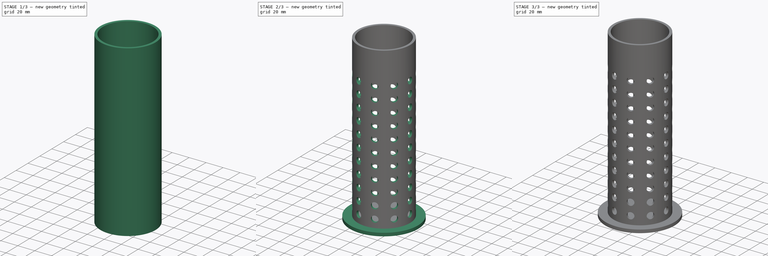
[diagram: build sequence overview — one tinted view per stage of 3, left to right]
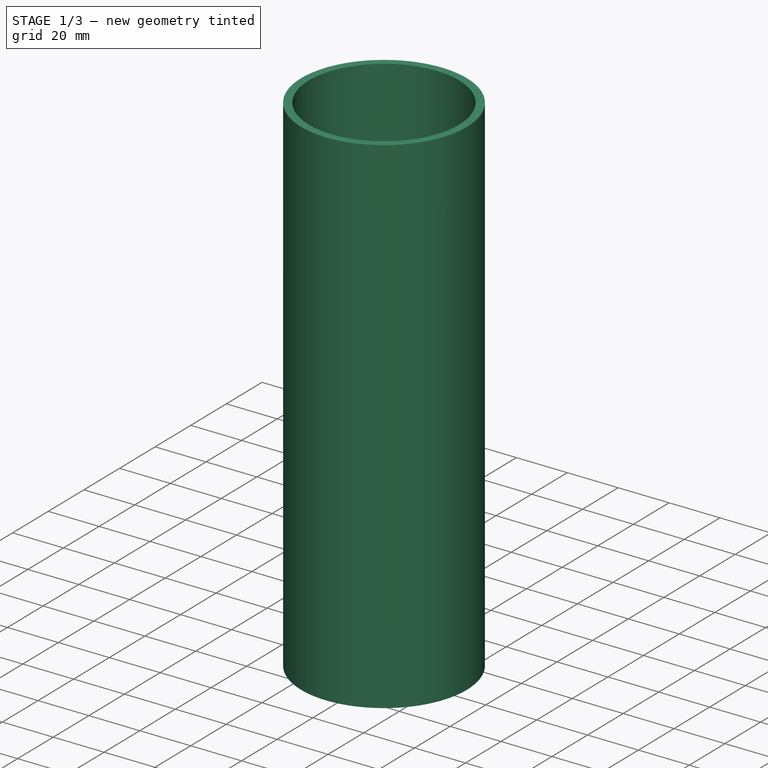
[diagram: stage 1 of 3 — iso view after this stage's code; geometry added in this stage tinted green]
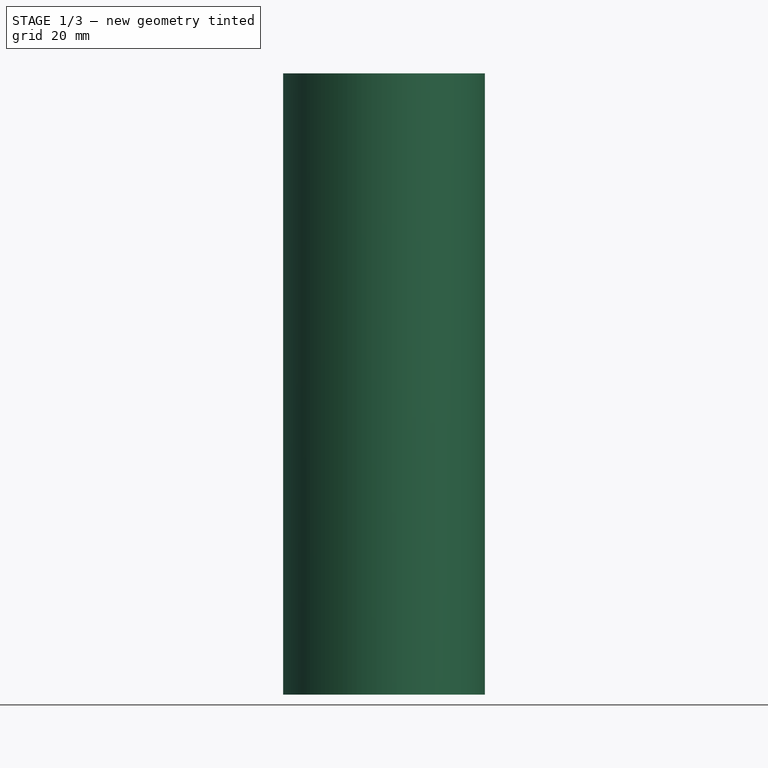
[diagram: stage 1 of 3 — front view after this stage's code; geometry added in this stage tinted green]
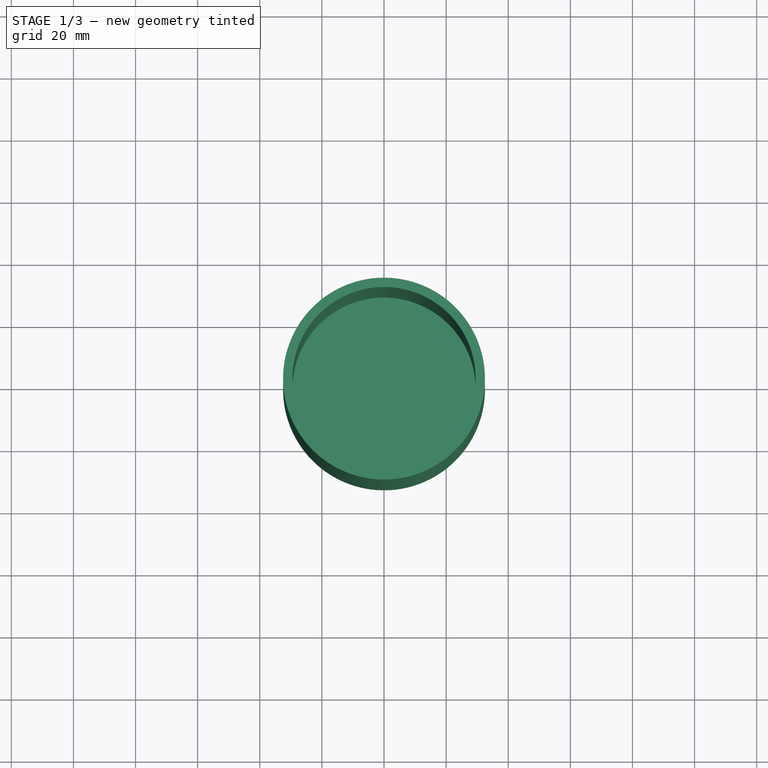
[diagram: stage 1 of 3 — top view after this stage's code; geometry added in this stage tinted green]
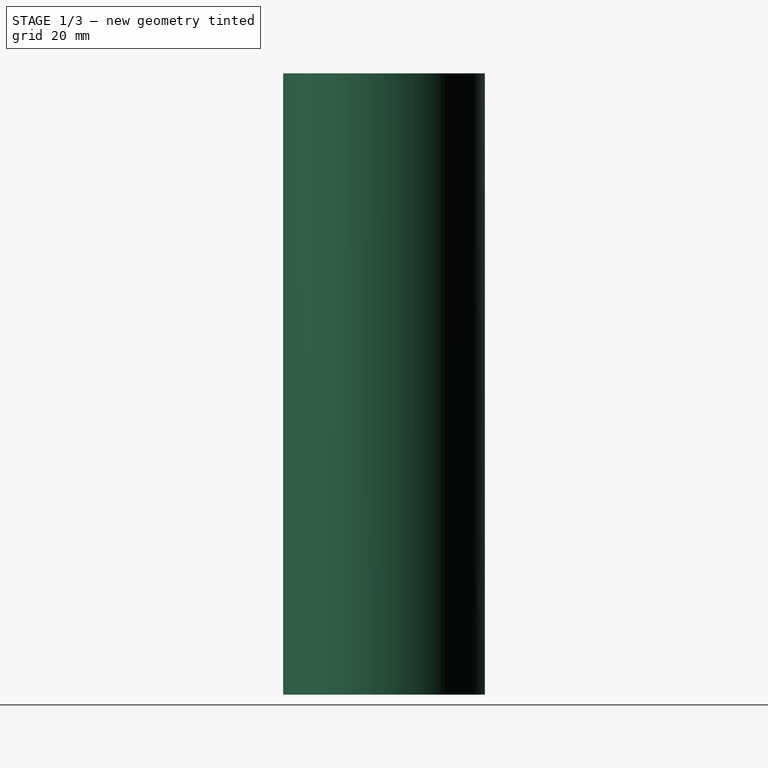
[diagram: stage 1 of 3 — right view after this stage's code; geometry added in this stage tinted green]
FCSTD DOCUMENT  (FreeCAD 1.0R39285 (Git))
Label: Lamp
License: All rights reserved
LicenseURL: https://en.wikipedia.org/wiki/All_rights_reserved
objects: Sketcher::SketchObject×5, PartDesign::Pad×3, PartDesign::Pocket×2, PartDesign::Thickness×1, PartDesign::PolarPattern×1, PartDesign::Body×1
note: 31 computed .brp shape members not serialized (recipe doc carries the construction recipe); baked Part::Feature solids carry a one-line shape summary decoded from their .brp

FEATURE [Sketcher::SketchObject] Sketch
  ArcFitTolerance = 1e-06
  AttachmentSupport = -> [XY_Plane]
  FullyConstrained = true
  MakeInternals = false
  MapMode = 5
  sketch-geometry (1):
    g0: Circle CenterX=0 CenterY=0 CenterZ=0 NormalX=0 NormalY=0 NormalZ=1 AngleXU=0 Radius=32.5
  constraints (2):
    c: Diameter(g0) = 65
    c: Coincident(g0,g-1)
FEATURE [PartDesign::Pad] Pad
  Direction = (0,0,1)
  Length = 200
  Length2 = 10
  Profile = -> Sketch
  ReferenceAxis = -> Sketch [N_Axis]
  Refine = true
  Suppressed = false
  Type = 0
FEATURE [PartDesign::Thickness] Thickness
  Base = -> Pad [Face3]
  BaseFeature = -> Pad
  Intersection = false
  Join = 0
  Mode = 0
  Refine = true
  Reversed = true
  SupportTransform = false
  Suppressed = false
  Value = 3
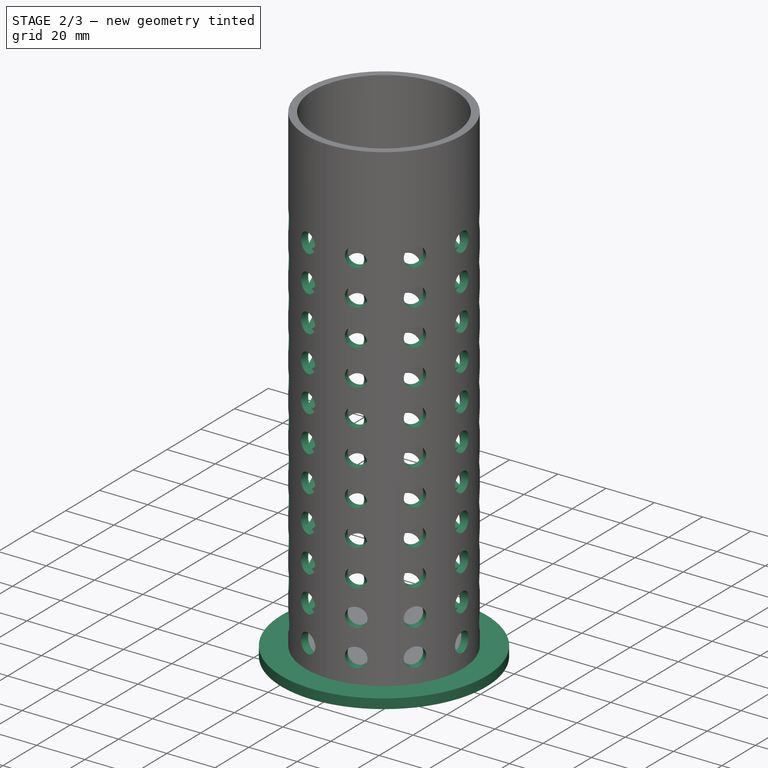
[diagram: stage 2 of 3 — iso view after this stage's code; geometry added in this stage tinted green]
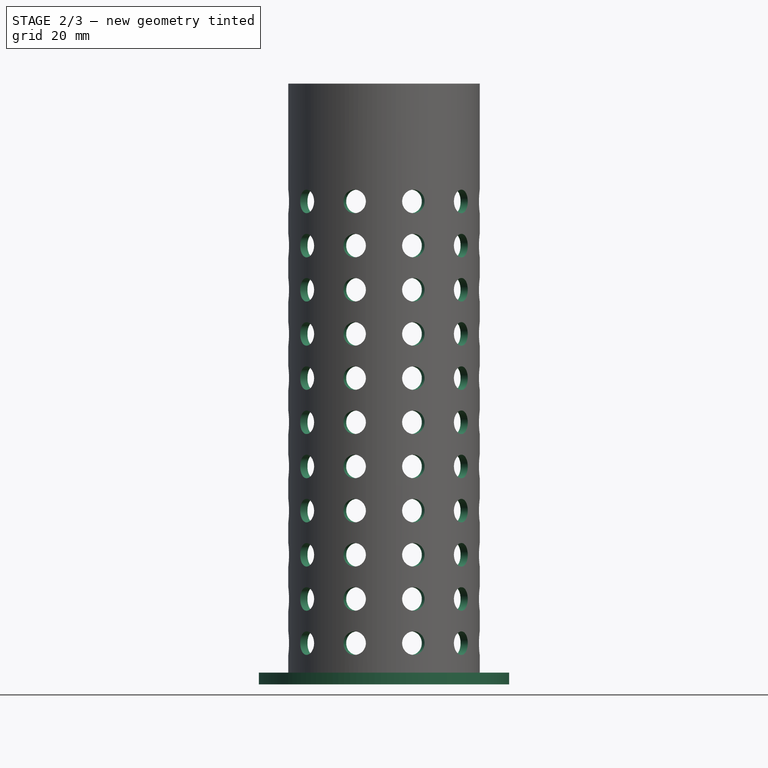
[diagram: stage 2 of 3 — front view after this stage's code; geometry added in this stage tinted green]
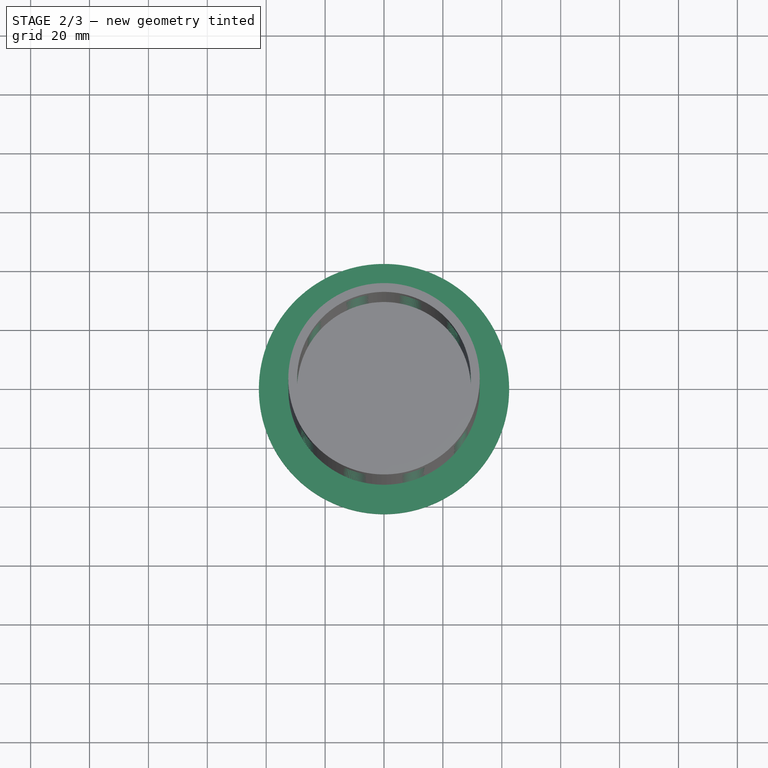
[diagram: stage 2 of 3 — top view after this stage's code; geometry added in this stage tinted green]
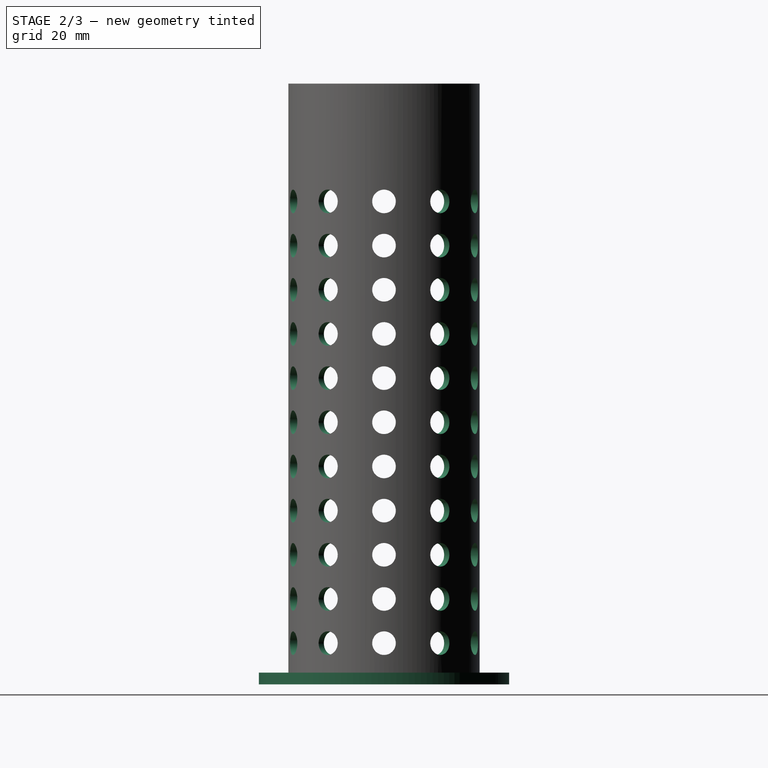
[diagram: stage 2 of 3 — right view after this stage's code; geometry added in this stage tinted green]
FEATURE [Sketcher::SketchObject] Sketch001
  ArcFitTolerance = 1e-06
  AttachmentSupport = -> [YZ_Plane]
  FullyConstrained = true
  MakeInternals = false
  MapMode = 5
  Placement = pos=(0,0,0) rot=(0.57735,0.57735,0.57735;2.0944rad)
  sketch-geometry (23):
    g0: Circle CenterX=0 CenterY=10 CenterZ=0 NormalX=0 NormalY=0 NormalZ=1 AngleXU=0 Radius=4
    g1: Circle CenterX=0 CenterY=25 CenterZ=0 NormalX=0 NormalY=0 NormalZ=1 AngleXU=0 Radius=4
    g2: Circle CenterX=0 CenterY=40 CenterZ=0 NormalX=0 NormalY=0 NormalZ=1 AngleXU=0 Radius=4
    g3: Circle CenterX=0 CenterY=55 CenterZ=0 NormalX=0 NormalY=0 NormalZ=1 AngleXU=0 Radius=4
    g4: Circle CenterX=0 CenterY=70 CenterZ=0 NormalX=0 NormalY=0 NormalZ=1 AngleXU=0 Radius=4
    g5: Circle CenterX=0 CenterY=85 CenterZ=0 NormalX=0 NormalY=0 NormalZ=1 AngleXU=0 Radius=4
    g6: Circle CenterX=0 CenterY=100 CenterZ=0 NormalX=0 NormalY=0 NormalZ=1 AngleXU=0 Radius=4
    g7: Circle CenterX=0 CenterY=115 CenterZ=0 NormalX=0 NormalY=0 NormalZ=1 AngleXU=0 Radius=4
    g8: Circle CenterX=0 CenterY=130 CenterZ=0 NormalX=0 NormalY=0 NormalZ=1 AngleXU=0 Radius=4
    g9: Circle CenterX=0 CenterY=145 CenterZ=0 NormalX=0 NormalY=0 NormalZ=1 AngleXU=0 Radius=4
    g10: Circle CenterX=0 CenterY=160 CenterZ=0 NormalX=0 NormalY=0 NormalZ=1 AngleXU=0 Radius=4
    g11: LineSegment [constr] StartX=0 StartY=10 StartZ=0 EndX=0 EndY=25 EndZ=0
    g12: LineSegment [constr] StartX=0 StartY=25 StartZ=0 EndX=0 EndY=40 EndZ=0
    g13: LineSegment [constr] StartX=0 StartY=40 StartZ=0 EndX=0 EndY=55 EndZ=0
    g14: LineSegment [constr] StartX=0 StartY=55 StartZ=0 EndX=0 EndY=70 EndZ=0
    g15: LineSegment [constr] StartX=0 StartY=70 StartZ=0 EndX=0 EndY=85 EndZ=0
    g16: LineSegment [constr] StartX=0 StartY=85 StartZ=0 EndX=0 EndY=100 EndZ=0
    g17: LineSegment [constr] StartX=0 StartY=100 StartZ=0 EndX=0 EndY=115 EndZ=0
    g18: LineSegment [constr] StartX=0 StartY=115 StartZ=0 EndX=0 EndY=130 EndZ=0
    g19: LineSegment [constr] StartX=0 StartY=130 StartZ=0 EndX=0 EndY=145 EndZ=0
    g20: LineSegment [constr] StartX=0 StartY=145 StartZ=0 EndX=0 EndY=160 EndZ=0
    g21: LineSegment [constr] StartX=0 StartY=10 StartZ=0 EndX=0 EndY=25 EndZ=0
    g22: LineSegment [constr] StartX=0 StartY=10 StartZ=0 EndX=0 EndY=25 EndZ=0
  constraints (58):
    c: Diameter(g0) = 8
    c: PointOnObject(g0,g-2)
    c: Distance(g0,g-1) = 10
    c: Coincident(g11,g0)
    c: Coincident(g11,g1)
    c: Vertical(g11)
    c: Coincident(g12,g1)
    c: Coincident(g12,g2)
    c: Vertical(g12)
    c: Coincident(g13,g2)
    c: Coincident(g13,g3)
    c: Vertical(g13)
    c: Coincident(g14,g3)
    c: Coincident(g14,g4)
    c: Vertical(g14)
    c: Coincident(g15,g4)
    c: Coincident(g15,g5)
    c: Vertical(g15)
    c: Coincident(g16,g5)
    c: Coincident(g16,g6)
    c: Vertical(g16)
    c: Coincident(g17,g6)
    c: Coincident(g17,g7)
    c: Vertical(g17)
    c: Coincident(g18,g7)
    c: Coincident(g18,g8)
    c: Vertical(g18)
    c: Coincident(g19,g8)
    c: Coincident(g19,g9)
    c: Vertical(g19)
    c: Coincident(g20,g9)
    c: Coincident(g20,g10)
    c: Vertical(g20)
    c: Coincident(g21,g0)
    c: Coincident(g21,g1)
    c: Coincident(g22,g0)
    c: Coincident(g22,g1)
    c: Equal(g11,g12)
    c: Equal(g12,g13)
    c: Equal(g13,g14)
    c: Equal(g14,g15)
    c: Equal(g15,g16)
    c: Equal(g16,g17)
    c: Equal(g17,g18)
    c: Equal(g18,g19)
    c: Equal(g19,g20)
    c: PointOnObject(g0,g-2)
    c: Equal(g0,g1)
    c: Equal(g1,g2)
    c: Equal(g2,g3)
    c: Equal(g3,g4)
    c: Equal(g4,g5)
    c: Equal(g5,g6)
    c: Equal(g6,g7)
    c: Equal(g7,g8)
    c: Equal(g8,g9)
    c: Equal(g9,g10)
    c: DistanceY(g11,g11) = 15
FEATURE [PartDesign::Pocket] Pocket
  BaseFeature = -> Thickness
  Direction = (-1,0,0)
  Length = 5
  Length2 = 5
  Profile = -> Sketch001
  ReferenceAxis = -> Sketch001 [N_Axis]
  Refine = true
  Suppressed = false
  Type = 1
FEATURE [PartDesign::PolarPattern] PolarPattern
  Angle = 360
  Axis = -> Z_Axis
  BaseFeature = -> Pocket
  Mode = 0
  Occurrences = 10
  Offset = 120
  Originals = -> [Pocket]
  Refine = true
  Suppressed = false
  TransformMode = 0
FEATURE [Sketcher::SketchObject] Sketch002
  ArcFitTolerance = 1e-06
  AttachmentSupport = -> [XY_Plane]
  FullyConstrained = true
  MakeInternals = false
  MapMode = 5
  sketch-geometry (1):
    g0: Circle CenterX=0 CenterY=0 CenterZ=0 NormalX=0 NormalY=0 NormalZ=1 AngleXU=0 Radius=42.5
  constraints (2):
    c: Diameter(g0) = 85
    c: Coincident(g0,g-1)
FEATURE [PartDesign::Pad] Pad001
  BaseFeature = -> PolarPattern
  Direction = (0,0,1)
  Length = 4
  Length2 = 10
  Profile = -> Sketch002
  ReferenceAxis = -> Sketch002 [N_Axis]
  Refine = true
  Reversed = true
  Suppressed = false
  Type = 0
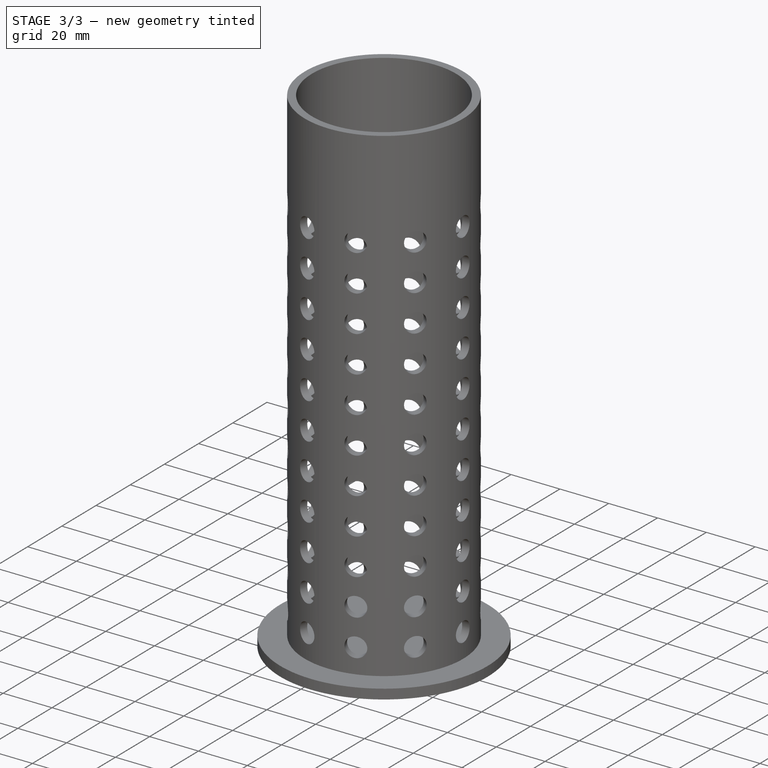
[diagram: stage 3 of 3 — iso view after this stage's code; geometry added in this stage tinted green]
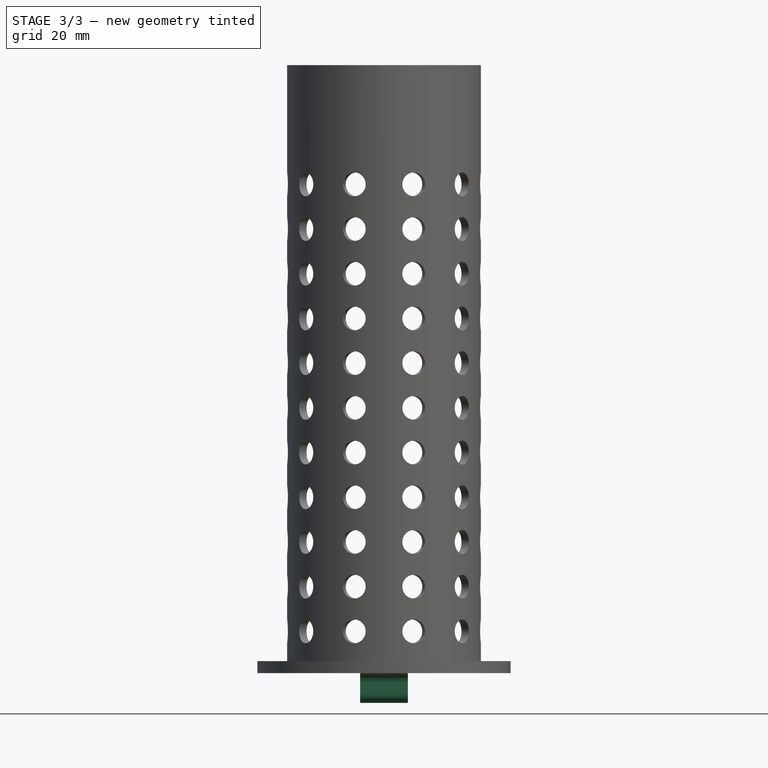
[diagram: stage 3 of 3 — front view after this stage's code; geometry added in this stage tinted green]
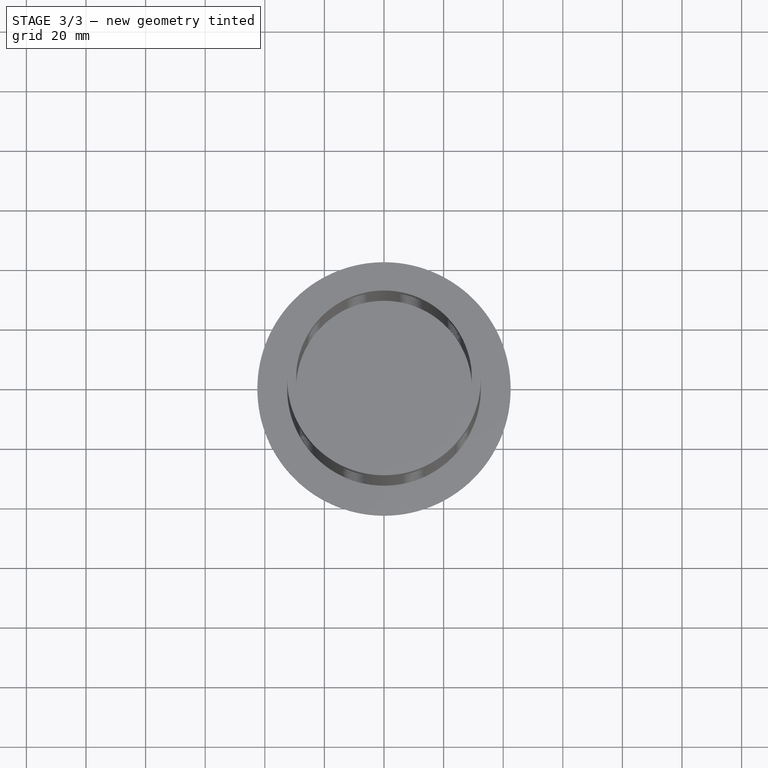
[diagram: stage 3 of 3 — top view after this stage's code; geometry added in this stage tinted green]
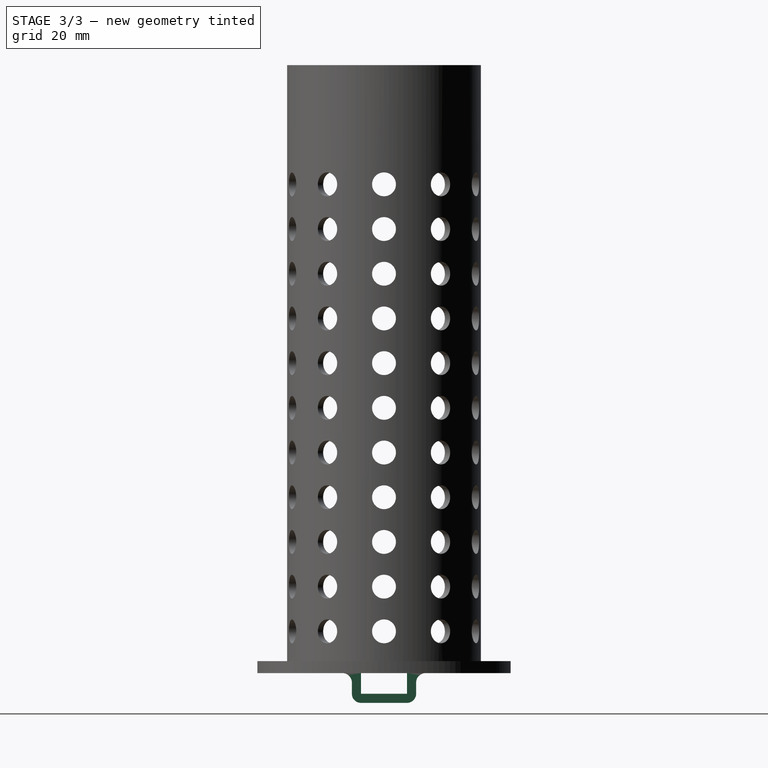
[diagram: stage 3 of 3 — right view after this stage's code; geometry added in this stage tinted green]
FEATURE [Sketcher::SketchObject] Sketch003
  ArcFitTolerance = 1e-06
  AttachmentSupport = -> [Pad001]
  FullyConstrained = true
  MakeInternals = false
  MapMode = 5
  Placement = pos=(0,0,-4) rot=(1,0,0;3.14159rad)
  sketch-geometry (4):
    g0: LineSegment StartX=-8 StartY=14 StartZ=0 EndX=8 EndY=14 EndZ=0
    g1: LineSegment StartX=8 StartY=14 StartZ=0 EndX=8 EndY=-14 EndZ=0
    g2: LineSegment StartX=-8 StartY=14 StartZ=0 EndX=-8 EndY=-14 EndZ=0
    g3: LineSegment StartX=-8 StartY=-14 StartZ=0 EndX=8 EndY=-14 EndZ=0
  constraints (10):
    c: Distance(g0) = 16
    c: Distance(g1) = 28
    c: Coincident(g1,g0)
    c: Coincident(g2,g0)
    c: Vertical(g2)
    c: Coincident(g3,g2)
    c: Coincident(g3,g1)
    c: Horizontal(g3)
    c: Symmetric(g0,g0,g-2)
    c: Symmetric(g0,g1,g-1)
FEATURE [PartDesign::Pad] Pad002
  BaseFeature = -> Pad001
  Direction = (0,0,-1)
  Length = 10
  Length2 = 10
  Profile = -> Sketch003
  ReferenceAxis = -> Sketch003 [N_Axis]
  Refine = true
  Suppressed = false
  Type = 0
FEATURE [Sketcher::SketchObject] Sketch004
  ArcFitTolerance = 1e-06
  AttachmentSupport = -> [Pad002]
  ExternalGeometry = -> [Pad002]
  FullyConstrained = false
  MakeInternals = false
  MapMode = 5
  Placement = pos=(-8,0,0) rot=(0.57735,-0.57735,-0.57735;2.0944rad)
  sketch-geometry (14):
    g0: ArcOfCircle CenterX=7.72944 CenterY=-10.9552 CenterZ=0 NormalX=0 NormalY=0 NormalZ=1 AngleXU=0 Radius=3.04478 StartAngle=4.71239 EndAngle=6.28319
    g1: ArcOfCircle CenterX=14 CenterY=-7.22577 CenterZ=0 NormalX=0 NormalY=0 NormalZ=1 AngleXU=0 Radius=3.22577 StartAngle=1.5708 EndAngle=3.14159
    g2: LineSegment StartX=10.7742 StartY=-7.22577 StartZ=0 EndX=10.7742 EndY=-10.9552 EndZ=0
    g3: ArcOfCircle CenterX=-7.72944 CenterY=-10.9552 CenterZ=0 NormalX=0 NormalY=0 NormalZ=1 AngleXU=0 Radius=3.04478 StartAngle=3.14159 EndAngle=4.71239
    g4: ArcOfCircle CenterX=-14 CenterY=-7.22577 CenterZ=0 NormalX=0 NormalY=0 NormalZ=1 AngleXU=0 Radius=3.22577 StartAngle=0 EndAngle=1.5708
    g5: LineSegment StartX=-10.7742 StartY=-7.22577 StartZ=0 EndX=-10.7742 EndY=-10.9552 EndZ=0
    g6: LineSegment StartX=-7.72944 StartY=-4 StartZ=0 EndX=-7.72944 EndY=-10.9552 EndZ=0
    g7: LineSegment StartX=7.72944 StartY=-10.9552 StartZ=0 EndX=-7.72944 EndY=-10.9552 EndZ=0
    g8: LineSegment StartX=7.72944 StartY=-10.9552 StartZ=0 EndX=7.72944 EndY=-4 EndZ=0
    g9: LineSegment StartX=-7.72944 StartY=-4 StartZ=0 EndX=7.72944 EndY=-4 EndZ=0
    g10: LineSegment StartX=14 StartY=-4 StartZ=0 EndX=14 EndY=-14 EndZ=0
    g11: LineSegment StartX=14 StartY=-14 StartZ=0 EndX=7.72944 EndY=-14 EndZ=0
    g12: LineSegment StartX=-7.72944 StartY=-14 StartZ=0 EndX=-14 EndY=-14 EndZ=0
    g13: LineSegment StartX=-14 StartY=-14 StartZ=0 EndX=-14 EndY=-4 EndZ=0
  constraints (32):
    c: Angle(g1) = 1.5708
    c: Coincident(g1,g-6)
    c: Coincident(g2,g1)
    c: Tangent(g2,g0) = 1.5708
    c: Coincident(g4,g-4)
    c: Coincident(g5,g3)
    c: Vertical(g5)
    c: Equal(g0,g3)
    c: Equal(g2,g5)
    c: Equal(g4,g1)
    c: Symmetric(g0,g3,g-2)
    c: Vertical(g2)
    c: Tangent(g5,g4) = 1.5708
    c: Coincident(g6,g3)
    c: Vertical(g6)
    c: Coincident(g7,g0)
    c: Coincident(g7,g3)
    c: Coincident(g8,g0)
    c: Vertical(g8)
    c: Coincident(g9,g6)
    c: Coincident(g9,g8)
    c: Horizontal(g9)
    c: Coincident(g10,g1)
    c: Coincident(g10,g-6)
    c: Coincident(g11,g10)
    c: Tangent(g11,g0) = 1.5708
    c: Coincident(g12,g-5)
    c: Coincident(g13,g12)
    c: PointOnObject(g3,g-5)
    c: Coincident(g13,g4)
    c: Tangent(g12,g3) = 1.5708
    c: PointOnObject(g4,g13)
FEATURE [PartDesign::Pocket] Pocket001
  BaseFeature = -> Pad002
  Direction = (1,0,0)
  Length = 5
  Length2 = 5
  Profile = -> Sketch004
  ReferenceAxis = -> Sketch004 [N_Axis]
  Refine = true
  Suppressed = false
  Type = 2
FEATURE [PartDesign::Body] Body
  AllowCompound = false
  Group = -> [Sketch,Pad,Thickness,Sketch001,Pocket,PolarPattern,Sketch002,Pad001,Sketch003,Pad002,Sketch004,Pocket001]
  Origin = -> Origin
  Tip = -> Pocket001
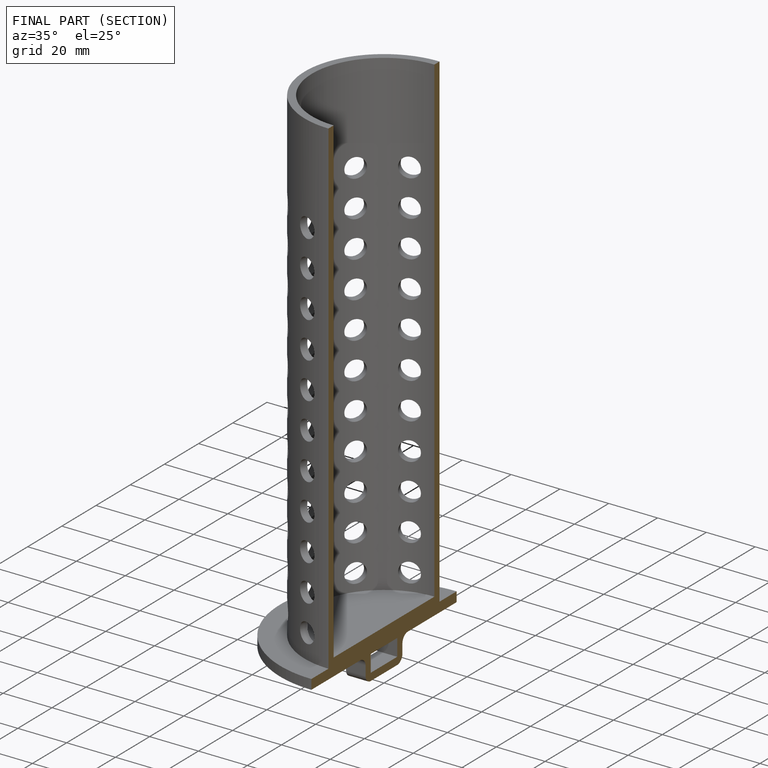
[diagram: finished part — half-section view (interior)]
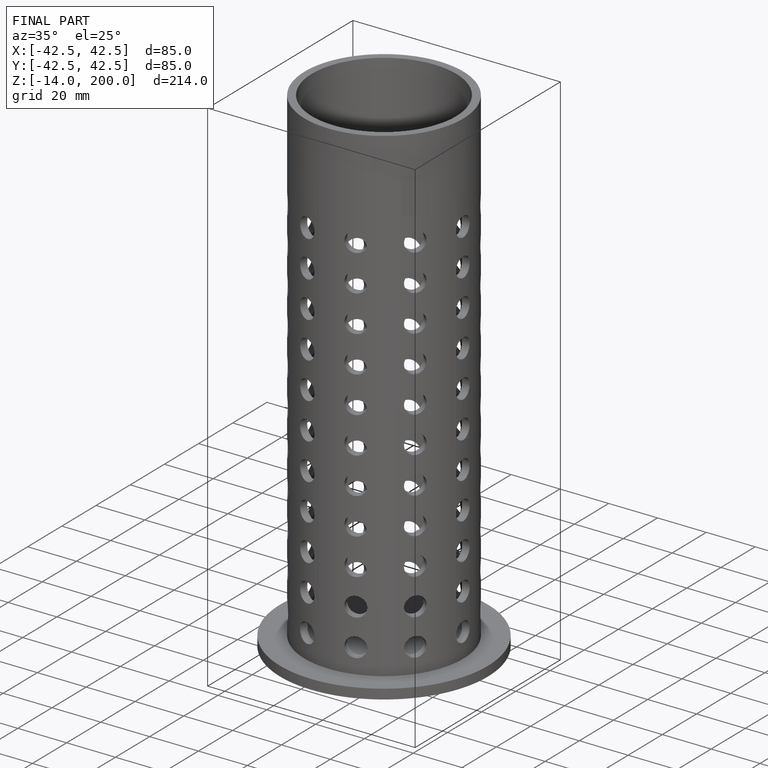
[diagram: finished part — iso view with bounding-box wireframe]
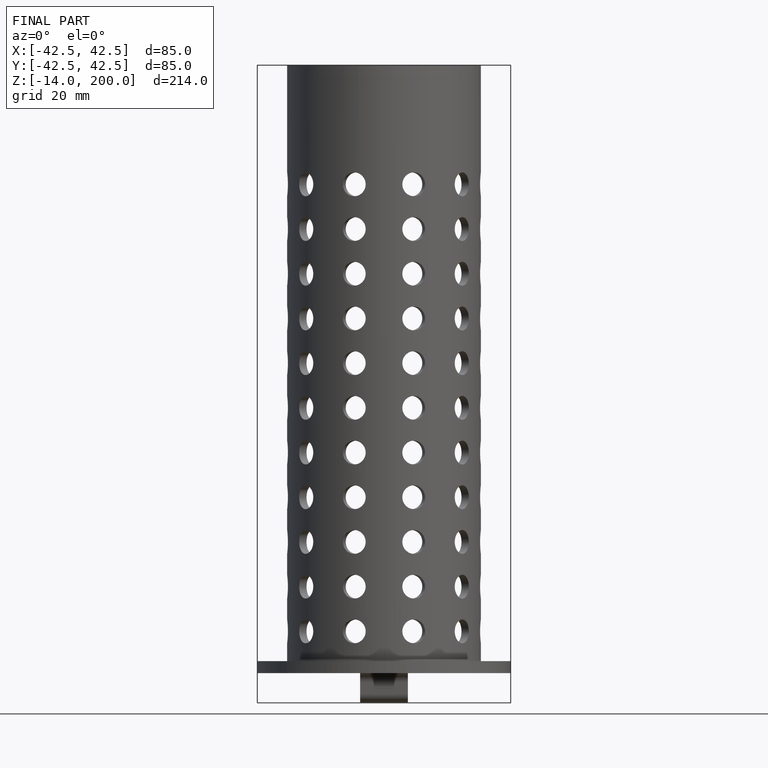
[diagram: finished part — front view with bounding-box wireframe]
